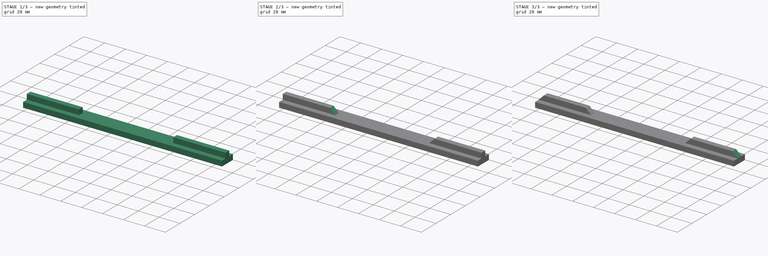
[diagram: build sequence overview — one tinted view per stage of 3, left to right]
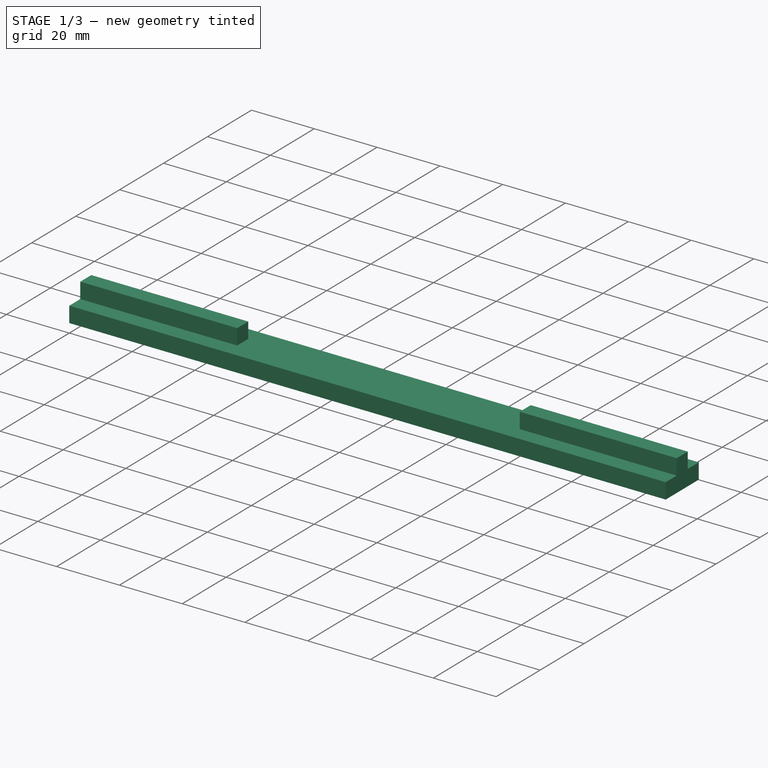
[diagram: stage 1 of 3 — iso view after this stage's code; geometry added in this stage tinted green]
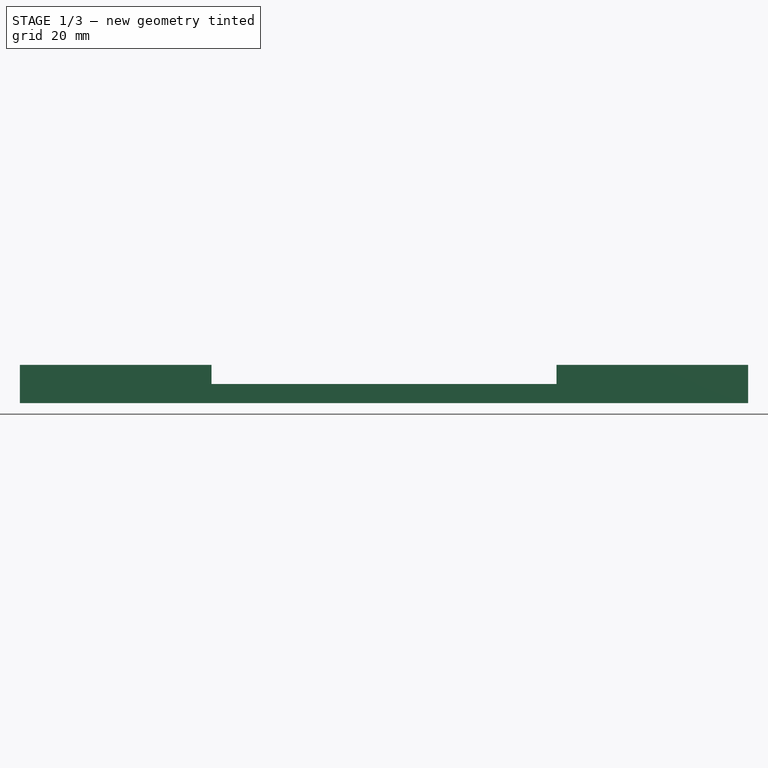
[diagram: stage 1 of 3 — front view after this stage's code; geometry added in this stage tinted green]
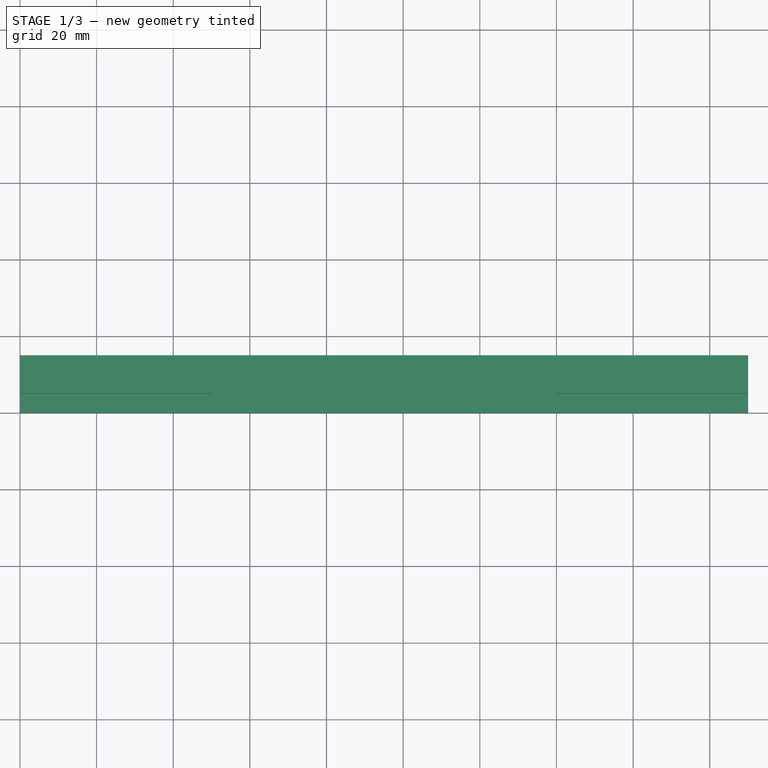
[diagram: stage 1 of 3 — top view after this stage's code; geometry added in this stage tinted green]
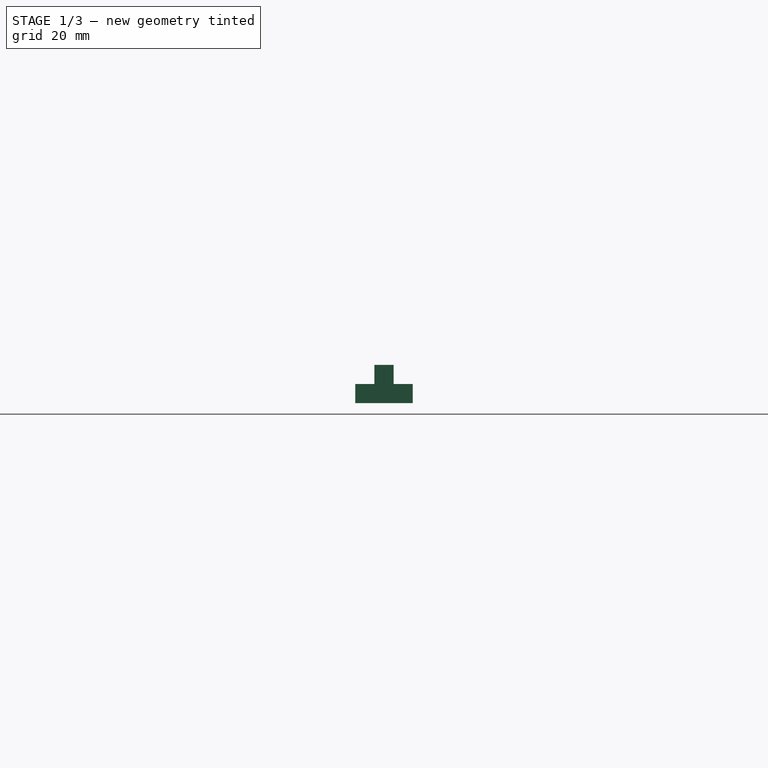
[diagram: stage 1 of 3 — right view after this stage's code; geometry added in this stage tinted green]
FCSTD DOCUMENT  (FreeCAD 0.16R5861 (Git))
Label: 190mm_zip-tie_spacer
License: All rights reserved
LicenseURL: http://en.wikipedia.org/wiki/All_rights_reserved
objects: Sketcher::SketchObject×3, PartDesign::Pad×2, PartDesign::Chamfer×2, PartDesign::Pocket×1
note: 11 computed .brp shape members not serialized (recipe doc carries the construction recipe); baked Part::Feature solids carry a one-line shape summary decoded from their .brp

FEATURE [Sketcher::SketchObject] Sketch
  sketch-geometry (4):
    g0: LineSegment StartX=0 StartY=0 StartZ=0 EndX=190 EndY=0 EndZ=0
    g1: LineSegment StartX=190 StartY=0 StartZ=0 EndX=190 EndY=15 EndZ=0
    g2: LineSegment StartX=190 StartY=15 StartZ=0 EndX=0 EndY=15 EndZ=0
    g3: LineSegment StartX=0 StartY=15 StartZ=0 EndX=0 EndY=0 EndZ=0
  constraints (11):
    c: Coincident(g0,g1)
    c: Coincident(g1,g2)
    c: Coincident(g2,g3)
    c: Coincident(g3,g0)
    c: Horizontal(g0)
    c: Horizontal(g2)
    c: Vertical(g1)
    c: Vertical(g3)
    c: Coincident(g0,g-1)
    c: DistanceY(g1) = 15
    c: DistanceX(g2) = -190
FEATURE [PartDesign::Pad] Pad
  Length = 5
  Length2 = 100
  Sketch = -> Sketch
  Type = 0
FEATURE [Sketcher::SketchObject] Sketch001
  ExternalGeometry = -> [Pad]
  Placement = pos=(0,0,5) rot=(0,0,1;0rad)
  Support = -> Pad [Face6]
  sketch-geometry (8):
    g0: LineSegment StartX=0 StartY=5 StartZ=0 EndX=50 EndY=5 EndZ=0
    g1: LineSegment StartX=50 StartY=5 StartZ=0 EndX=50 EndY=10 EndZ=0
    g2: LineSegment StartX=50 StartY=10 StartZ=0 EndX=0 EndY=10 EndZ=0
    g3: LineSegment StartX=0 StartY=10 StartZ=0 EndX=0 EndY=5 EndZ=0
    g4: LineSegment StartX=190 StartY=5 StartZ=0 EndX=140 EndY=5 EndZ=0
    g5: LineSegment StartX=140 StartY=5 StartZ=0 EndX=140 EndY=10 EndZ=0
    g6: LineSegment StartX=140 StartY=10 StartZ=0 EndX=190 EndY=10 EndZ=0
    g7: LineSegment StartX=190 StartY=10 StartZ=0 EndX=190 EndY=5 EndZ=0
  constraints (24):
    c: Coincident(g0,g1)
    c: Coincident(g1,g2)
    c: Coincident(g2,g3)
    c: Coincident(g3,g0)
    c: Horizontal(g0)
    c: Horizontal(g2)
    c: Vertical(g1)
    c: Vertical(g3)
    c: PointOnObject(g0,g-2)
    c: Coincident(g4,g5)
    c: Coincident(g5,g6)
    c: Coincident(g6,g7)
    c: Coincident(g7,g4)
    c: Horizontal(g4)
    c: Horizontal(g6)
    c: Vertical(g5)
    c: Vertical(g7)
    c: PointOnObject(g4,g-3)
    c: PointOnObject(g0,g4)
    c: Equal(g0,g4)
    c: DistanceY(g6,g-3) = 5
    c: DistanceY(g4,g-3) = -5
    c: DistanceX(g2) = -50
    c: Equal(g1,g5)
FEATURE [PartDesign::Pad] Pad001
  Length = 5
  Length2 = 100
  Sketch = -> Sketch001
  Type = 0
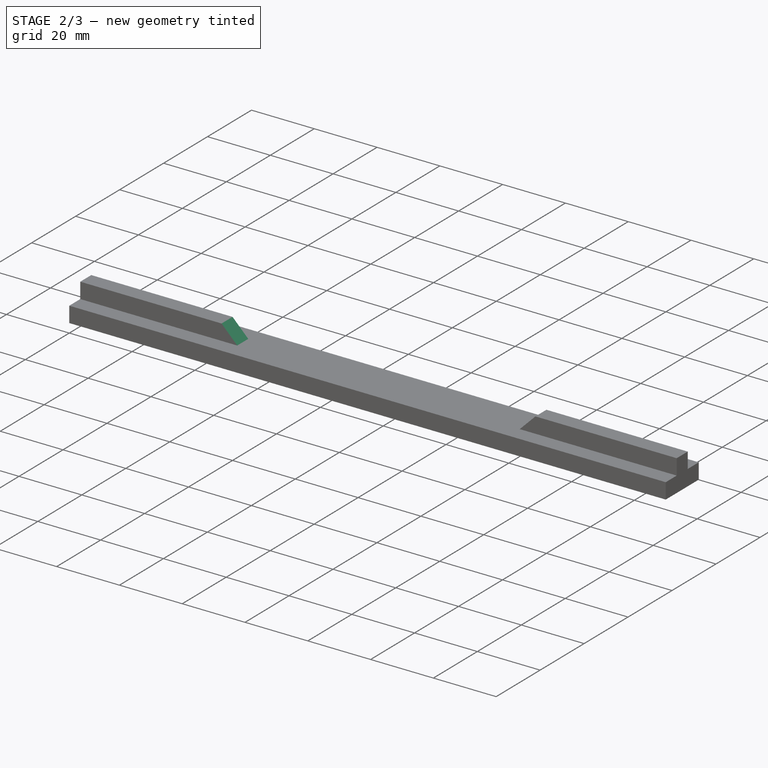
[diagram: stage 2 of 3 — iso view after this stage's code; geometry added in this stage tinted green]
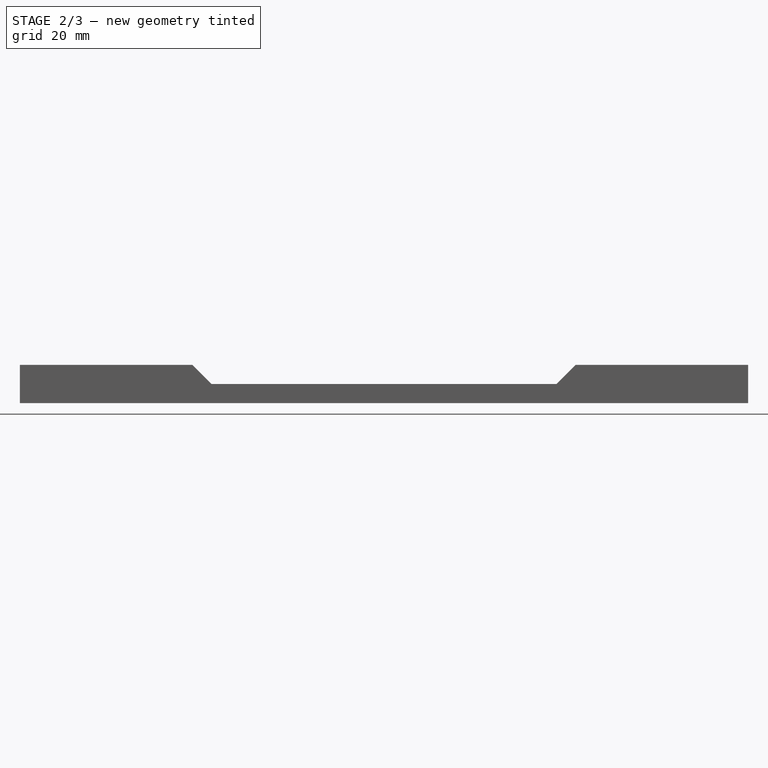
[diagram: stage 2 of 3 — front view after this stage's code; geometry added in this stage tinted green]
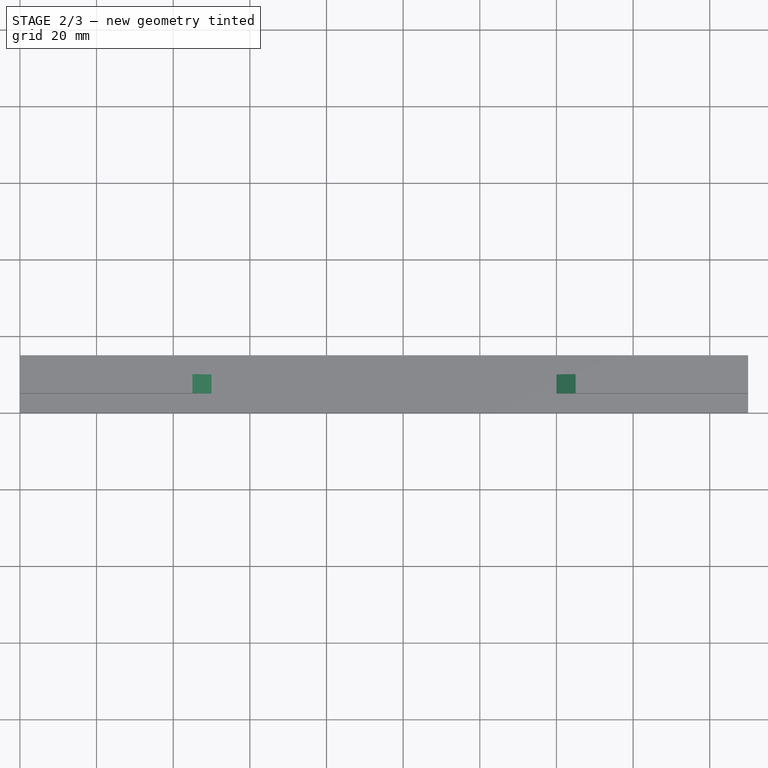
[diagram: stage 2 of 3 — top view after this stage's code; geometry added in this stage tinted green]
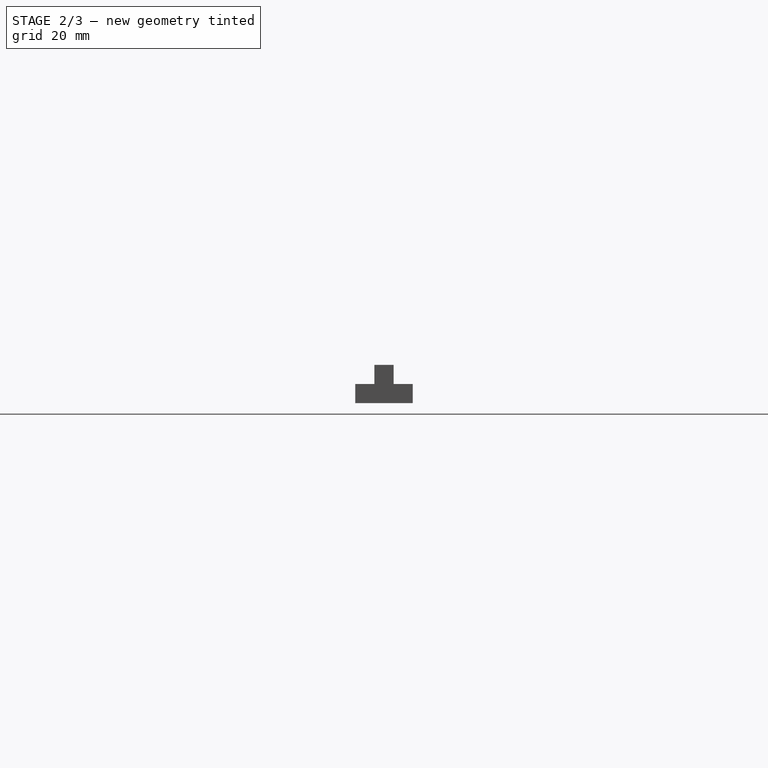
[diagram: stage 2 of 3 — right view after this stage's code; geometry added in this stage tinted green]
FEATURE [PartDesign::Chamfer] Chamfer
  Base = -> Pad001 [Edge37,Edge31]
  Size = 4.99
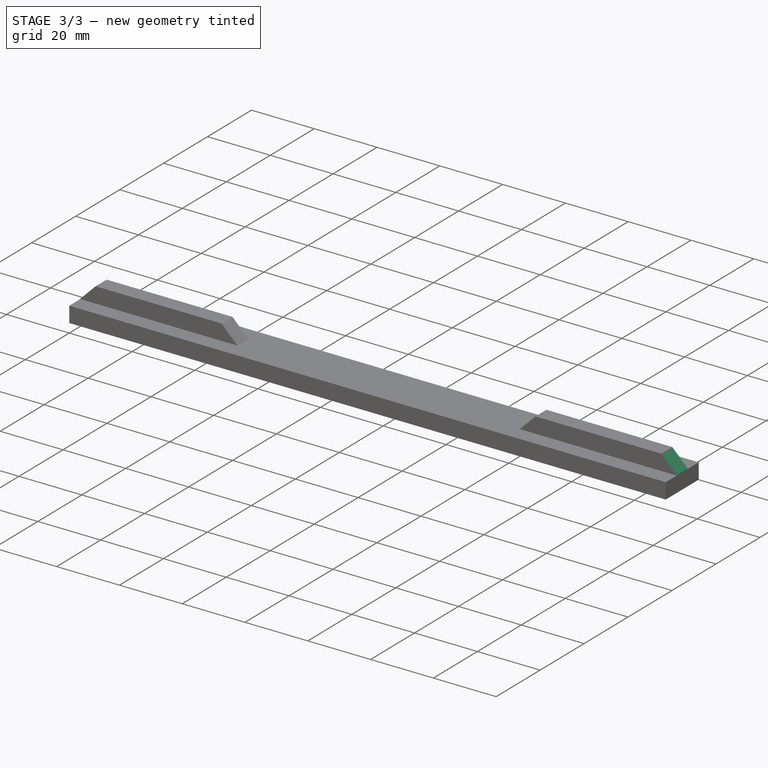
[diagram: stage 3 of 3 — iso view after this stage's code; geometry added in this stage tinted green]
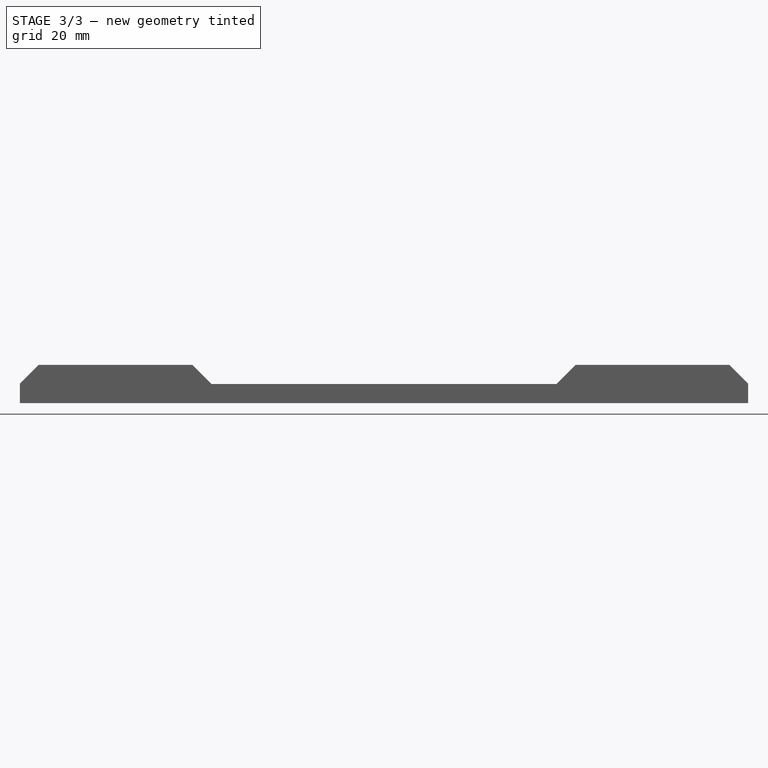
[diagram: stage 3 of 3 — front view after this stage's code; geometry added in this stage tinted green]
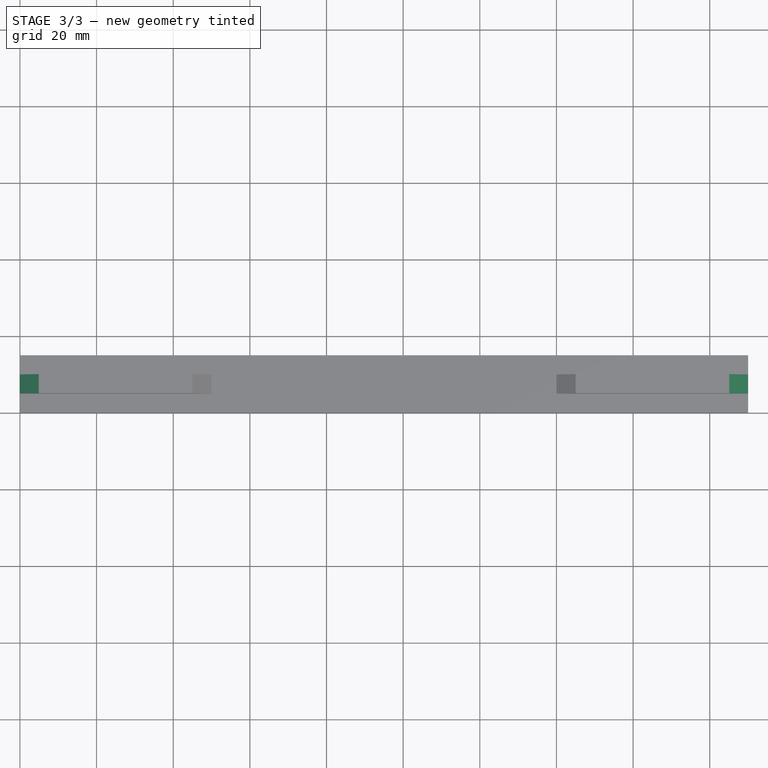
[diagram: stage 3 of 3 — top view after this stage's code; geometry added in this stage tinted green]
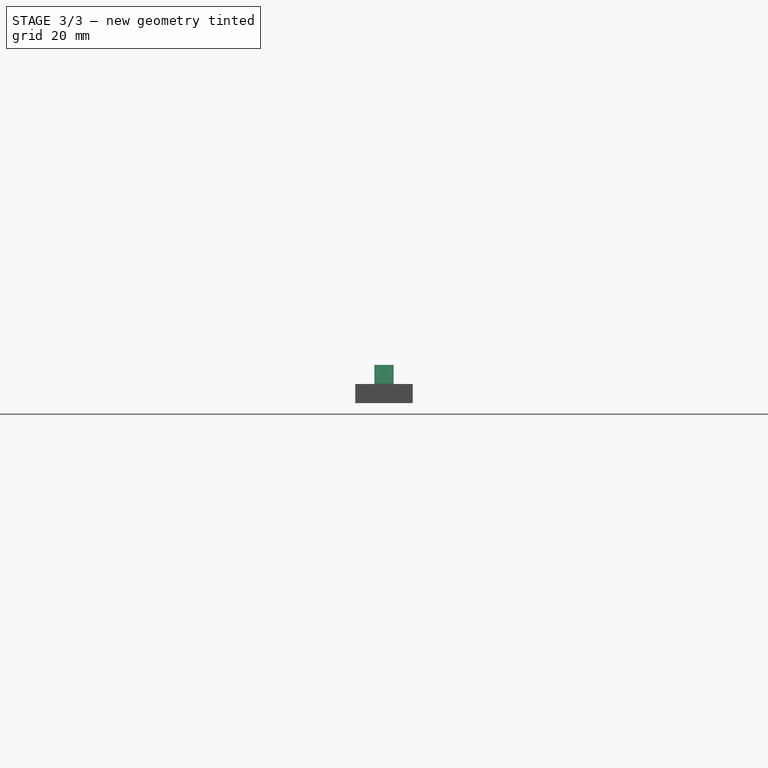
[diagram: stage 3 of 3 — right view after this stage's code; geometry added in this stage tinted green]
FEATURE [PartDesign::Chamfer] Chamfer001
  Base = -> Chamfer [Edge43,Edge7]
  Size = 4.9
FEATURE [Sketcher::SketchObject] Sketch002
  Placement = pos=(0,0,0) rot=(1,0,0;3.14159rad)
  Support = -> Chamfer001 [Face16]
  sketch-geometry (24):
    g0: LineSegment StartX=34.8801 StartY=-11.055 StartZ=0 EndX=34.8801 EndY=-2.84291 EndZ=0
    g1: LineSegment StartX=34.8801 StartY=-2.84291 StartZ=0 EndX=36.3626 EndY=-2.84291 EndZ=0
    g2: LineSegment StartX=36.3626 StartY=-2.84291 StartZ=0 EndX=36.3626 EndY=-11.055 EndZ=0
    g3: LineSegment StartX=36.3626 StartY=-11.055 StartZ=0 EndX=34.8801 EndY=-11.055 EndZ=0
    g4: LineSegment StartX=42.648 StartY=-2.5223 StartZ=0 EndX=40.0983 EndY=-2.5223 EndZ=0
    g5: LineSegment StartX=40.0983 StartY=-2.5223 StartZ=0 EndX=39.0902 EndY=-4.71628 EndZ=0
    g6: LineSegment StartX=39.0902 StartY=-4.71628 StartZ=0 EndX=39.9204 EndY=-6.55449 EndZ=0
    g7: LineSegment StartX=39.9204 StartY=-6.55449 StartZ=0 EndX=41.5214 EndY=-6.79167 EndZ=0
    g8: LineSegment StartX=41.5214 StartY=-6.79167 StartZ=0 EndX=42.648 EndY=-6.55449 EndZ=0
    g9: LineSegment StartX=42.648 StartY=-6.55449 StartZ=0 EndX=42.648 EndY=-11.055 EndZ=0
    g10: LineSegment StartX=42.648 StartY=-11.055 StartZ=0 EndX=44.1898 EndY=-11.055 EndZ=0
    g11: LineSegment StartX=44.1898 StartY=-11.055 StartZ=0 EndX=44.1898 EndY=-2.5223 EndZ=0
    g12: LineSegment StartX=44.1898 StartY=-2.5223 StartZ=0 EndX=42.648 EndY=-2.5223 EndZ=0
    g13: Circle CenterX=41.7586 CenterY=-4.59769 CenterZ=0 NormalX=0 NormalY=0 NormalZ=1 Radius=1.23389
    g14: Ellipse CenterX=48.637 CenterY=-6.78641 CenterZ=0 NormalX=0 NormalY=0 NormalZ=1 MajorRadius=4.27233 MinorRadius=2.95342 AngleXU=1.61245
    g15: LineSegment [constr] StartX=48.4591 StartY=-2.51779 StartZ=0 EndX=48.8149 EndY=-11.055 EndZ=0
    g16: LineSegment [constr] StartX=45.6862 StartY=-6.90938 StartZ=0 EndX=51.5879 EndY=-6.66344 EndZ=0
    g17: GeomPoint [constr] X=48.5085 Y=-3.702 Z=0
    g18: GeomPoint [constr] X=48.7656 Y=-9.87083 Z=0
    g19: Ellipse CenterX=48.637 CenterY=-6.78641 CenterZ=0 NormalX=0 NormalY=0 NormalZ=1 MajorRadius=3.09425 MinorRadius=2.05942 AngleXU=1.55163
    g20: LineSegment [constr] StartX=48.6963 StartY=-3.69273 StartZ=0 EndX=48.5777 EndY=-9.8801 EndZ=0
    g21: LineSegment [constr] StartX=46.578 StartY=-6.74695 StartZ=0 EndX=50.6961 EndY=-6.82588 EndZ=0
    g22: GeomPoint [constr] X=48.6813 Y=-4.47747 Z=0
    g23: GeomPoint [constr] X=48.5928 Y=-9.09536 Z=0
  constraints (28):
    c: Vertical(g0)
    c: Coincident(g0,g1)
    c: Horizontal(g1)
    c: Coincident(g1,g2)
    c: Vertical(g2)
    c: Coincident(g2,g3)
    c: Coincident(g3,g0)
    c: Horizontal(g4)
    c: Coincident(g4,g5)
    c: Coincident(g5,g6)
    c: Coincident(g6,g7)
    c: Coincident(g7,g8)
    c: Coincident(g8,g9)
    c: Vertical(g9)
    c: Coincident(g9,g10)
    c: Horizontal(g10)
    c: Coincident(g10,g11)
    c: Vertical(g11)
    c: Coincident(g11,g12)
    c: Coincident(g12,g4)
    c: Horizontal(g12)
    c: InternalAlignment(g15-g18 -> g14) x4
    c: InternalAlignment(g20-g23 -> g19) x4
    c: Coincident(g19,g14)
    c: PointOnObject(g17,g19)
    c: Horizontal(g3)
    c: PointOnObject(g2,g10)
    c: PointOnObject(g15,g10)
FEATURE [PartDesign::Pocket] Pocket
  Length = 1
  Sketch = -> Sketch002
  Type = 0
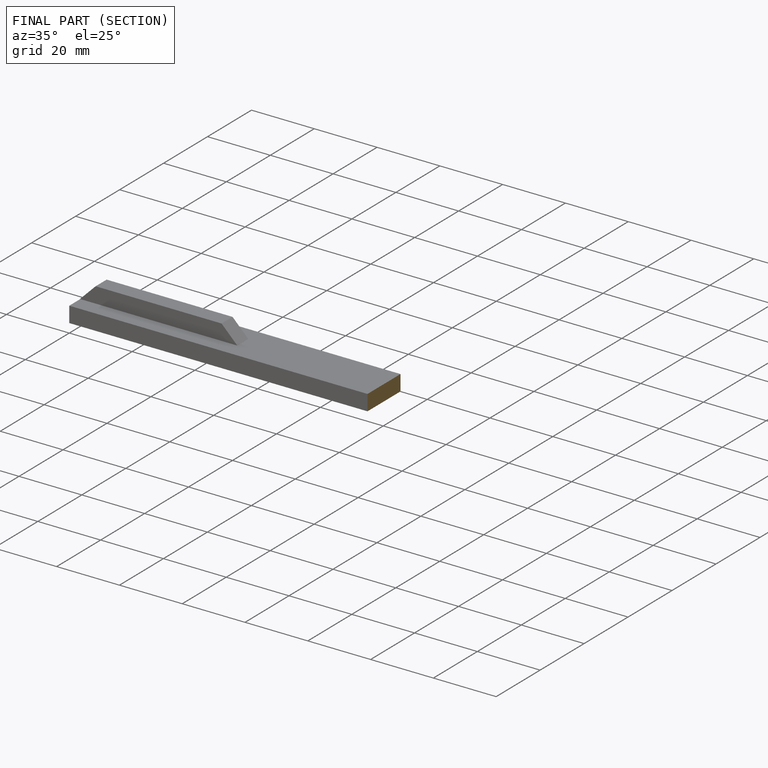
[diagram: finished part — half-section view (interior)]
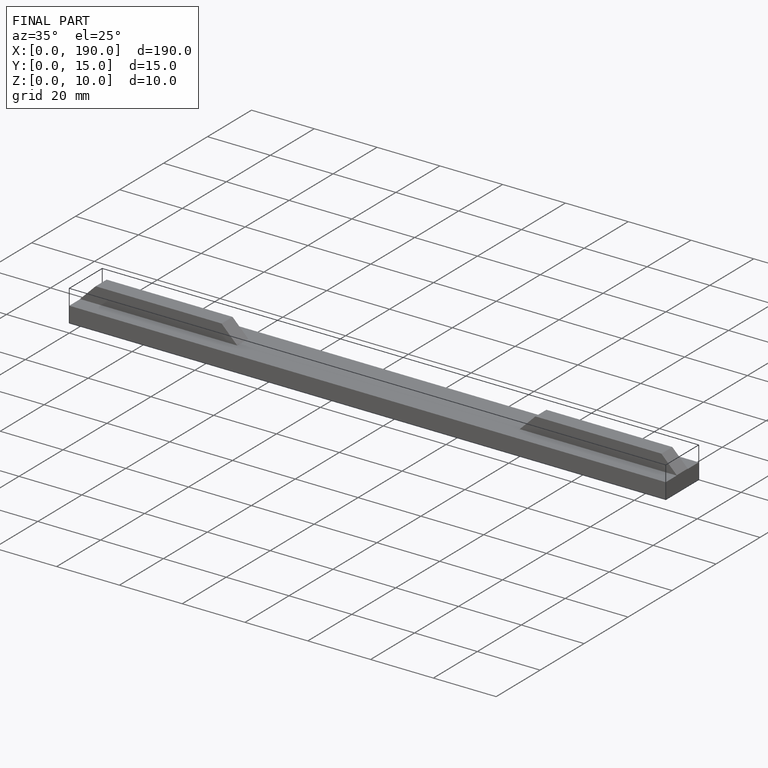
[diagram: finished part — iso view with bounding-box wireframe]
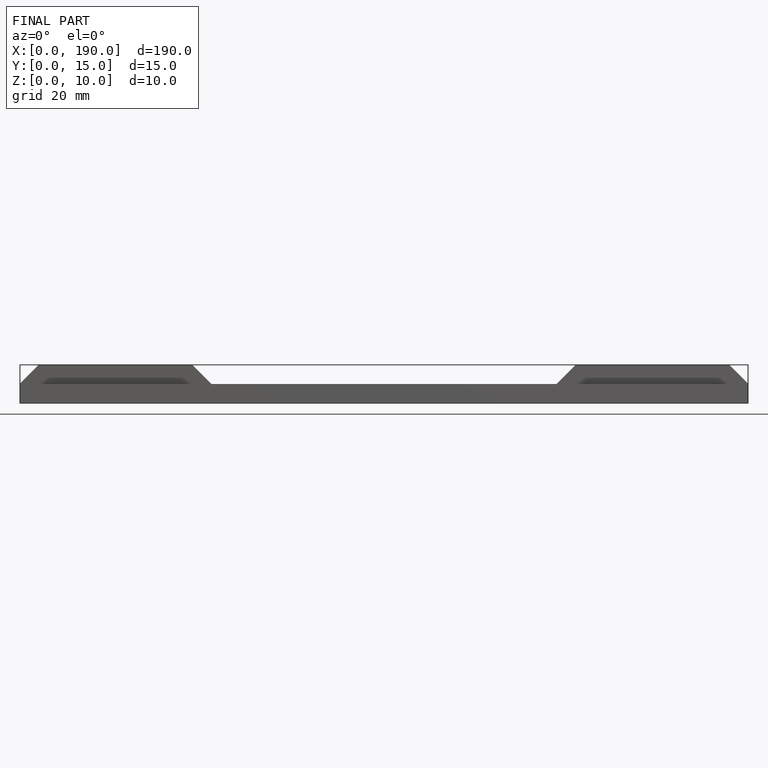
[diagram: finished part — front view with bounding-box wireframe]
